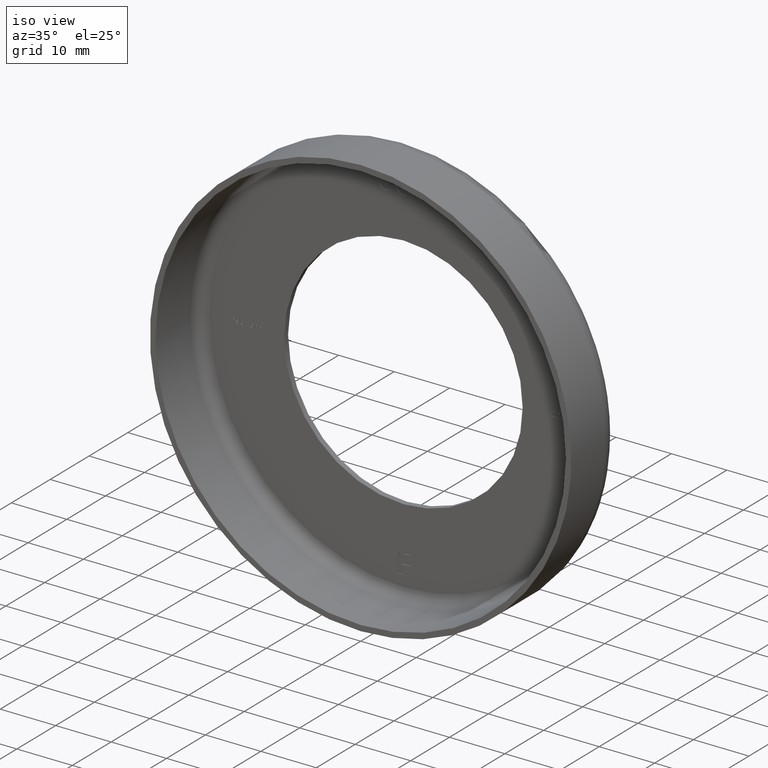
[diagram: clean part render]
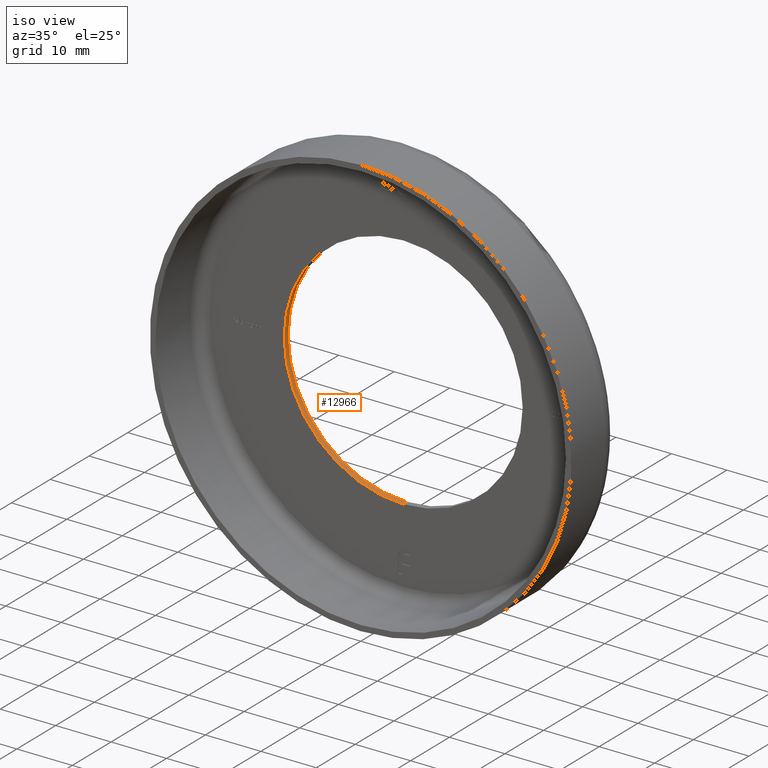
[diagram: same view with one face highlighted and labeled with its STEP entity id]
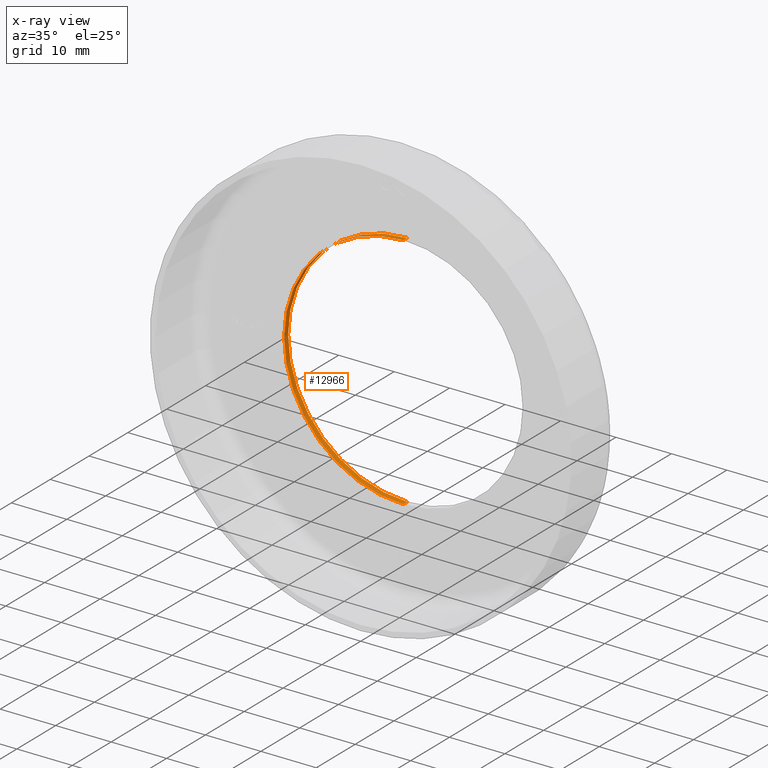
[diagram: x-ray of the same camera — body ghosted, the highlighted face saturated]
A machine part, iso view. The second image highlights one B-rep face of the part: STEP entity #12966.
The next image is the same camera in x-ray: the body ghosted, the highlighted face saturated — about 0% of this face is hidden behind the body in this view.
In plain terms, the highlighted cylindrical surface (partial cylindrical patch) has radius 21.5 mm, axis along (-0, -1, -0).
Its self-contained STEP definition (entity closure, byte-faithful):
#81 = CARTESIAN_POINT ( 'NONE',  ( 0.000000000000000000, 12.00000000000000000, 0.000000000000000000 ) ) ;
#809 = ORIENTED_EDGE ( 'NONE', *, *, #5356, .F. ) ;
#1069 = CARTESIAN_POINT ( 'NONE',  ( 0.000000000000000000, 11.00000000000000000, 0.000000000000000000 ) ) ;
#1147 = DIRECTION ( 'NONE',  ( -0.000000000000000000, -1.000000000000000000, -0.000000000000000000 ) ) ;
#2599 = CARTESIAN_POINT ( 'NONE',  ( 0.000000000000000000, 0.000000000000000000, -21.50000000000000000 ) ) ;
#4106 = CARTESIAN_POINT ( 'NONE',  ( 0.000000000000000000, 0.000000000000000000, 0.000000000000000000 ) ) ;
#4123 = CARTESIAN_POINT ( 'NONE',  ( 2.632990618166809235E-15, 11.00000000000000000, 21.50000000000000000 ) ) ;
#5110 = VERTEX_POINT ( 'NONE', #4123 ) ;
#5160 = LINE ( 'NONE', #2599, #13585 ) ;
#5330 = FACE_OUTER_BOUND ( 'NONE', #9069, .T. ) ;
#5356 = EDGE_CURVE ( 'NONE', #13995, #13262, #7555, .T. ) ;
#5823 = CARTESIAN_POINT ( 'NONE',  ( 2.632990618166809235E-15, 0.000000000000000000, 21.50000000000000000 ) ) ;
#6120 = EDGE_CURVE ( 'NONE', #5110, #11837, #12466, .T. ) ;
#7011 = DIRECTION ( 'NONE',  ( -0.000000000000000000, -1.000000000000000000, -0.000000000000000000 ) ) ;
#7398 = DIRECTION ( 'NONE',  ( -0.000000000000000000, -1.000000000000000000, -0.000000000000000000 ) ) ;
#7555 = CIRCLE ( 'NONE', #7673, 21.50000000000000000 ) ;
#7673 = AXIS2_PLACEMENT_3D ( 'NONE', #81, #1147, #14256 ) ;
#8050 = EDGE_CURVE ( 'NONE', #13995, #5110, #8716, .T. ) ;
#8716 = LINE ( 'NONE', #5823, #10227 ) ;
#9069 = EDGE_LOOP ( 'NONE', ( #809, #10693, #11396, #9362 ) ) ;
#9362 = ORIENTED_EDGE ( 'NONE', *, *, #10120, .F. ) ;
#9401 = DIRECTION ( 'NONE',  ( -0.000000000000000000, -1.000000000000000000, -0.000000000000000000 ) ) ;
#10120 = EDGE_CURVE ( 'NONE', #13262, #11837, #5160, .T. ) ;
#10227 = VECTOR ( 'NONE', #7011, 1000.000000000000000 ) ;
#10693 = ORIENTED_EDGE ( 'NONE', *, *, #8050, .T. ) ;
#10922 = CYLINDRICAL_SURFACE ( 'NONE', #12939, 21.50000000000000000 ) ;
#11220 = DIRECTION ( 'NONE',  ( -0.000000000000000000, -1.000000000000000000, -0.000000000000000000 ) ) ;
#11396 = ORIENTED_EDGE ( 'NONE', *, *, #6120, .T. ) ;
#11477 = CARTESIAN_POINT ( 'NONE',  ( 0.000000000000000000, 11.00000000000000000, -21.50000000000000000 ) ) ;
#11777 = CARTESIAN_POINT ( 'NONE',  ( 0.000000000000000000, 12.00000000000000000, -21.50000000000000000 ) ) ;
#11837 = VERTEX_POINT ( 'NONE', #11477 ) ;
#12424 = DIRECTION ( 'NONE',  ( 0.000000000000000000, 0.000000000000000000, -1.000000000000000000 ) ) ;
#12466 = CIRCLE ( 'NONE', #12700, 21.50000000000000000 ) ;
#12700 = AXIS2_PLACEMENT_3D ( 'NONE', #1069, #9401, #14137 ) ;
#12939 = AXIS2_PLACEMENT_3D ( 'NONE', #4106, #11220, #12424 ) ;
#12966 = ADVANCED_FACE ( 'NONE', ( #5330 ), #10922, .F. ) ;
#13262 = VERTEX_POINT ( 'NONE', #11777 ) ;
#13585 = VECTOR ( 'NONE', #7398, 1000.000000000000000 ) ;
#13995 = VERTEX_POINT ( 'NONE', #14297 ) ;
#14137 = DIRECTION ( 'NONE',  ( 0.000000000000000000, 0.000000000000000000, -1.000000000000000000 ) ) ;
#14256 = DIRECTION ( 'NONE',  ( 0.000000000000000000, 0.000000000000000000, -1.000000000000000000 ) ) ;
#14297 = CARTESIAN_POINT ( 'NONE',  ( 2.632990618166809235E-15, 12.00000000000000000, 21.50000000000000000 ) ) ;